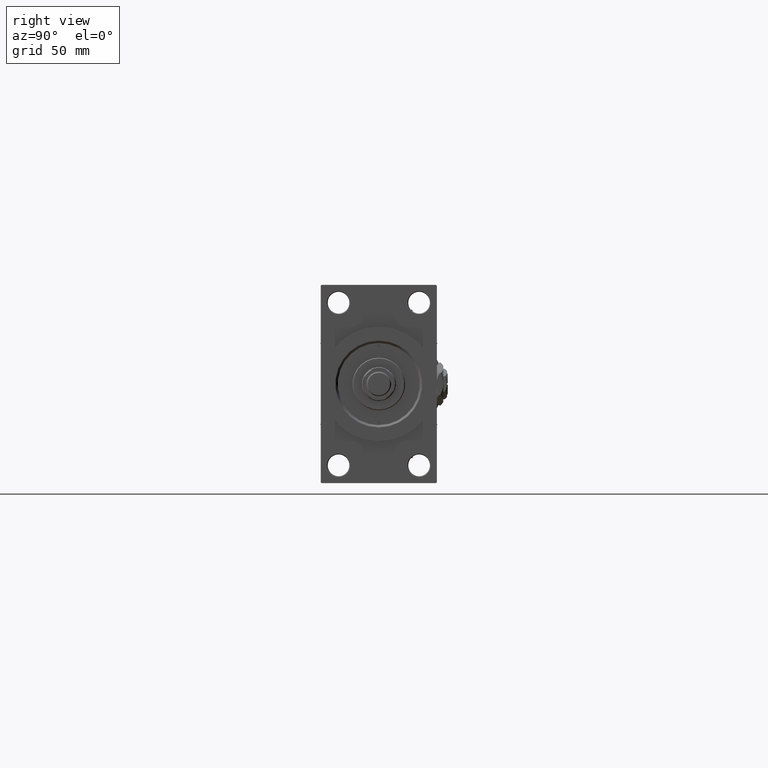
[diagram: clean part render]
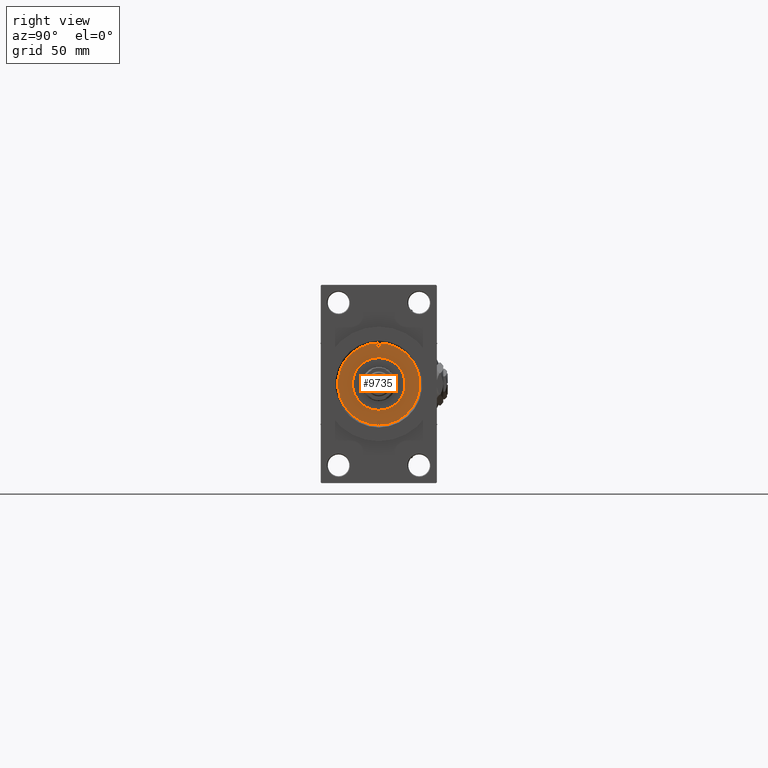
[diagram: same view with one face highlighted and labeled with its STEP entity id]
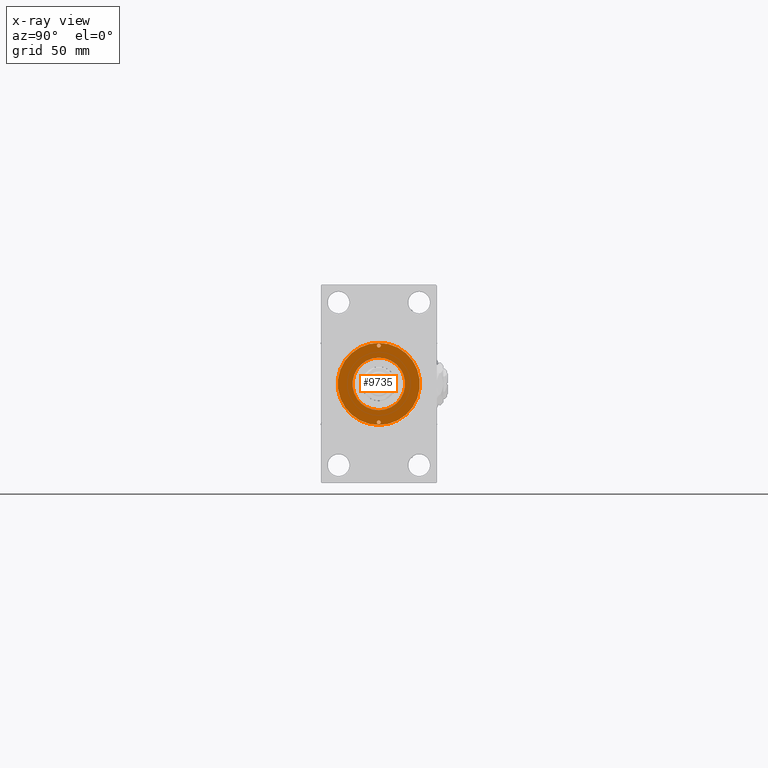
[diagram: x-ray of the same camera — body ghosted, the highlighted face saturated]
A machine part, right view. The second image highlights one B-rep face of the part: STEP entity #9735.
The next image is the same camera in x-ray: the body ghosted, the highlighted face saturated — about 0% of this face is hidden behind the body in this view.
In plain terms, the highlighted planar face has unit normal (1, -0, -0).
Its self-contained STEP definition (entity closure, byte-faithful):
#373 = ORIENTED_EDGE ( 'NONE', *, *, #8744, .F. ) ;
#966 = EDGE_LOOP ( 'NONE', ( #14054, #15992 ) ) ;
#1049 = VERTEX_POINT ( 'NONE', #42987 ) ;
#1814 = CARTESIAN_POINT ( 'NONE',  ( 0.000000000000000000, 0.000000000000000000, 43.25999999999999801 ) ) ;
#1892 = DIRECTION ( 'NONE',  ( 1.000000000000000000, 0.000000000000000000, 0.000000000000000000 ) ) ;
#1985 = EDGE_CURVE ( 'NONE', #29004, #22859, #19697, .T. ) ;
#2063 = DIRECTION ( 'NONE',  ( 1.000000000000000000, 0.000000000000000000, 0.000000000000000000 ) ) ;
#4104 = AXIS2_PLACEMENT_3D ( 'NONE', #12075, #15449, #27818 ) ;
#4683 = AXIS2_PLACEMENT_3D ( 'NONE', #24350, #13253, #1892 ) ;
#5413 = DIRECTION ( 'NONE',  ( 0.000000000000000000, 0.000000000000000000, 1.000000000000000000 ) ) ;
#5684 = VERTEX_POINT ( 'NONE', #19868 ) ;
#5757 = CIRCLE ( 'NONE', #4104, 26.50000000000000355 ) ;
#5970 = EDGE_CURVE ( 'NONE', #22729, #5684, #22218, .T. ) ;
#6177 = DIRECTION ( 'NONE',  ( 1.000000000000000000, 0.000000000000000000, 0.000000000000000000 ) ) ;
#6543 = FACE_BOUND ( 'NONE', #35961, .T. ) ;
#8706 = VERTEX_POINT ( 'NONE', #25296 ) ;
#8744 = EDGE_CURVE ( 'NONE', #46517, #1049, #45385, .T. ) ;
#9525 = AXIS2_PLACEMENT_3D ( 'NONE', #15282, #19418, #35137 ) ;
#9735 = ADVANCED_FACE ( 'NONE', ( #41886, #6543, #38767, #18925 ), #22296, .T. ) ;
#10685 = AXIS2_PLACEMENT_3D ( 'NONE', #22165, #45886, #42028 ) ;
#10716 = CARTESIAN_POINT ( 'NONE',  ( 24.75000000000000000, 0.000000000000000000, 43.25999999999999801 ) ) ;
#10876 = ORIENTED_EDGE ( 'NONE', *, *, #39118, .F. ) ;
#11113 = VERTEX_POINT ( 'NONE', #49509 ) ;
#12075 = CARTESIAN_POINT ( 'NONE',  ( 0.000000000000000000, 0.000000000000000000, 43.25999999999999801 ) ) ;
#13253 = DIRECTION ( 'NONE',  ( 0.000000000000000000, 0.000000000000000000, 1.000000000000000000 ) ) ;
#14018 = CARTESIAN_POINT ( 'NONE',  ( -23.50000000000000355, 0.000000000000000000, 43.25999999999999801 ) ) ;
#14054 = ORIENTED_EDGE ( 'NONE', *, *, #5970, .F. ) ;
#14084 = DIRECTION ( 'NONE',  ( 1.000000000000000000, 0.000000000000000000, 0.000000000000000000 ) ) ;
#14190 = ORIENTED_EDGE ( 'NONE', *, *, #15615, .T. ) ;
#15282 = CARTESIAN_POINT ( 'NONE',  ( 0.000000000000000000, 0.000000000000000000, 43.25999999999999801 ) ) ;
#15449 = DIRECTION ( 'NONE',  ( 0.000000000000000000, 0.000000000000000000, 1.000000000000000000 ) ) ;
#15615 = EDGE_CURVE ( 'NONE', #11113, #8706, #22820, .T. ) ;
#15722 = AXIS2_PLACEMENT_3D ( 'NONE', #25916, #30540, #26424 ) ;
#15753 = EDGE_LOOP ( 'NONE', ( #14190, #45184 ) ) ;
#15992 = ORIENTED_EDGE ( 'NONE', *, *, #47522, .F. ) ;
#16244 = CIRCLE ( 'NONE', #45089, 1.249999999999997558 ) ;
#17003 = CIRCLE ( 'NONE', #26863, 1.249999999999997558 ) ;
#18925 = FACE_OUTER_BOUND ( 'NONE', #15753, .T. ) ;
#19418 = DIRECTION ( 'NONE',  ( 0.000000000000000000, 0.000000000000000000, 1.000000000000000000 ) ) ;
#19697 = CIRCLE ( 'NONE', #22223, 1.249999999999997558 ) ;
#19868 = CARTESIAN_POINT ( 'NONE',  ( -26.00000000000000000, 1.530808498934188612E-16, 43.25999999999999801 ) ) ;
#20304 = ORIENTED_EDGE ( 'NONE', *, *, #1985, .F. ) ;
#20811 = EDGE_LOOP ( 'NONE', ( #373, #10876 ) ) ;
#21913 = EDGE_CURVE ( 'NONE', #8706, #11113, #5757, .T. ) ;
#22165 = CARTESIAN_POINT ( 'NONE',  ( -24.75000000000000000, 0.000000000000000000, 43.25999999999999801 ) ) ;
#22218 = CIRCLE ( 'NONE', #10685, 1.249999999999997558 ) ;
#22223 = AXIS2_PLACEMENT_3D ( 'NONE', #42047, #34298, #6177 ) ;
#22296 = PLANE ( 'NONE',  #15722 ) ;
#22729 = VERTEX_POINT ( 'NONE', #14018 ) ;
#22820 = CIRCLE ( 'NONE', #4683, 26.50000000000000355 ) ;
#22859 = VERTEX_POINT ( 'NONE', #31513 ) ;
#24344 = DIRECTION ( 'NONE',  ( 1.000000000000000000, 0.000000000000000000, 0.000000000000000000 ) ) ;
#24350 = CARTESIAN_POINT ( 'NONE',  ( 0.000000000000000000, 0.000000000000000000, 43.25999999999999801 ) ) ;
#25296 = CARTESIAN_POINT ( 'NONE',  ( 26.50000000000000355, 3.245314017740486554E-15, 43.25999999999999801 ) ) ;
#25916 = CARTESIAN_POINT ( 'NONE',  ( 0.000000000000000000, 0.000000000000000000, 43.25999999999999801 ) ) ;
#26424 = DIRECTION ( 'NONE',  ( 1.000000000000000000, 0.000000000000000000, -0.000000000000000000 ) ) ;
#26462 = DIRECTION ( 'NONE',  ( -0.000000000000000000, -0.000000000000000000, 1.000000000000000000 ) ) ;
#26863 = AXIS2_PLACEMENT_3D ( 'NONE', #10716, #26462, #14084 ) ;
#27818 = DIRECTION ( 'NONE',  ( 1.000000000000000000, 0.000000000000000000, 0.000000000000000000 ) ) ;
#29004 = VERTEX_POINT ( 'NONE', #35867 ) ;
#30539 = AXIS2_PLACEMENT_3D ( 'NONE', #1814, #5413, #2063 ) ;
#30540 = DIRECTION ( 'NONE',  ( 0.000000000000000000, 0.000000000000000000, 1.000000000000000000 ) ) ;
#31513 = CARTESIAN_POINT ( 'NONE',  ( 23.50000000000000355, 1.530808498934188612E-16, 43.25999999999999801 ) ) ;
#31752 = CIRCLE ( 'NONE', #9525, 17.00000000000000000 ) ;
#34298 = DIRECTION ( 'NONE',  ( -0.000000000000000000, -0.000000000000000000, 1.000000000000000000 ) ) ;
#35137 = DIRECTION ( 'NONE',  ( 1.000000000000000000, 0.000000000000000000, 0.000000000000000000 ) ) ;
#35867 = CARTESIAN_POINT ( 'NONE',  ( 26.00000000000000000, 0.000000000000000000, 43.25999999999999801 ) ) ;
#35961 = EDGE_LOOP ( 'NONE', ( #20304, #37500 ) ) ;
#37500 = ORIENTED_EDGE ( 'NONE', *, *, #44741, .F. ) ;
#38767 = FACE_BOUND ( 'NONE', #20811, .T. ) ;
#39118 = EDGE_CURVE ( 'NONE', #1049, #46517, #31752, .T. ) ;
#41886 = FACE_BOUND ( 'NONE', #966, .T. ) ;
#42028 = DIRECTION ( 'NONE',  ( 1.000000000000000000, 0.000000000000000000, 0.000000000000000000 ) ) ;
#42047 = CARTESIAN_POINT ( 'NONE',  ( 24.75000000000000000, 0.000000000000000000, 43.25999999999999801 ) ) ;
#42987 = CARTESIAN_POINT ( 'NONE',  ( 17.00000000000000000, 2.081899558550500280E-15, 43.25999999999999801 ) ) ;
#43435 = DIRECTION ( 'NONE',  ( -0.000000000000000000, -0.000000000000000000, 1.000000000000000000 ) ) ;
#44741 = EDGE_CURVE ( 'NONE', #22859, #29004, #17003, .T. ) ;
#45089 = AXIS2_PLACEMENT_3D ( 'NONE', #47536, #43435, #24344 ) ;
#45184 = ORIENTED_EDGE ( 'NONE', *, *, #21913, .T. ) ;
#45385 = CIRCLE ( 'NONE', #30539, 17.00000000000000000 ) ;
#45886 = DIRECTION ( 'NONE',  ( -0.000000000000000000, -0.000000000000000000, 1.000000000000000000 ) ) ;
#46517 = VERTEX_POINT ( 'NONE', #48875 ) ;
#47522 = EDGE_CURVE ( 'NONE', #5684, #22729, #16244, .T. ) ;
#47536 = CARTESIAN_POINT ( 'NONE',  ( -24.75000000000000000, 0.000000000000000000, 43.25999999999999801 ) ) ;
#48875 = CARTESIAN_POINT ( 'NONE',  ( -17.00000000000000000, 0.000000000000000000, 43.25999999999999801 ) ) ;
#49509 = CARTESIAN_POINT ( 'NONE',  ( -26.50000000000000355, 0.000000000000000000, 43.25999999999999801 ) ) ;